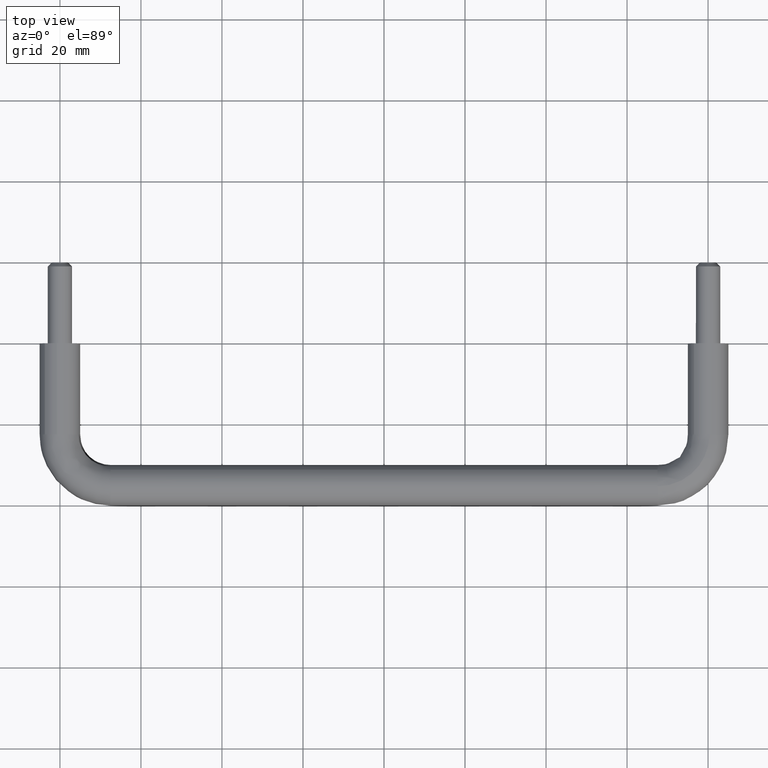
[diagram: clean part render]
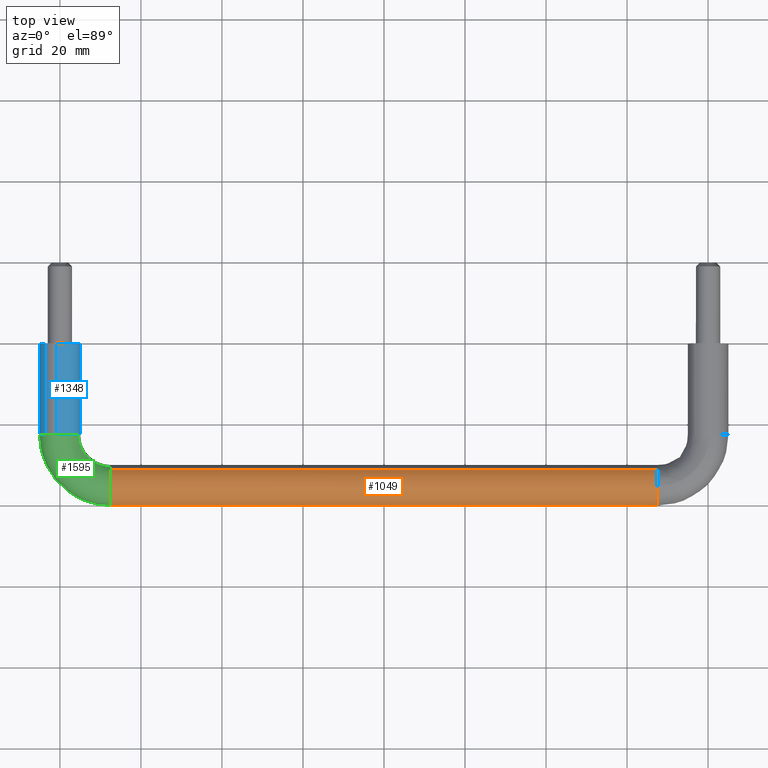
[diagram: same view with three faces highlighted in distinct colors, each labeled with its STEP entity id]
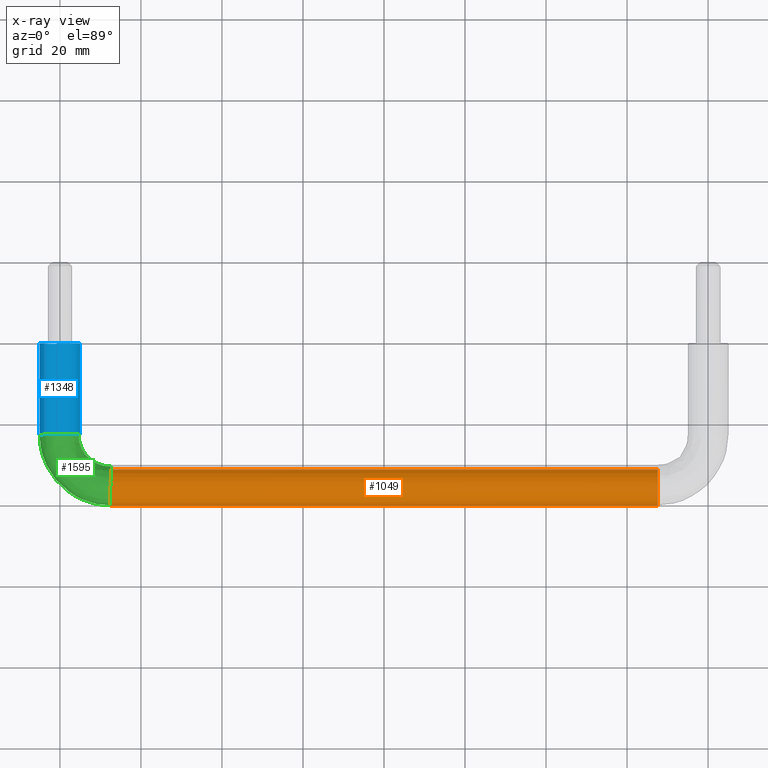
[diagram: x-ray of the same camera — body ghosted, the three highlighted faces saturated]
A machine part, top view with three faces highlighted in distinct colors.
The next image is the same camera in x-ray (body ghosted, the three faces saturated) — at least one of them is partly hidden behind the body in this view.
Their STEP definitions:

[orange] entity #1049 — the highlighted face is a freeform B-spline surface patch.
#928=CARTESIAN_POINT('',(9.124999999932097,-31.134301527502714,3.172047033751499));
#929=CARTESIAN_POINT('',(9.124999999932095,-31.158329223448398,3.200458507274524));
#930=CARTESIAN_POINT('',(9.124999999932093,-31.274626083842424,3.337973364186448));
#931=CARTESIAN_POINT('',(9.124999999932093,-31.373128144938558,3.441772878468769));
#932=CARTESIAN_POINT('',(9.124999999932093,-34.814901023407330,7.068644733530205));
#933=CARTESIAN_POINT('',(9.124999999932093,-38.441772878468768,3.626871855061437));
#934=CARTESIAN_POINT('',(9.124999999932093,-42.068644733530206,0.185098976592668));
#935=CARTESIAN_POINT('',(9.124999999932097,-38.602122203160221,-3.467853569749915));
#936=CARTESIAN_POINT('',(9.124999999932090,-38.577519551696867,-3.493779354891164));
#937=CARTESIAN_POINT('',(150.959375002785690,-31.134301527502689,3.172047033751499));
#938=CARTESIAN_POINT('',(150.959375002785720,-31.158329223448384,3.200458507274524));
#939=CARTESIAN_POINT('',(150.959375002785720,-31.274626083842413,3.337973364186448));
#940=CARTESIAN_POINT('',(150.959375002785690,-31.373128144938551,3.441772878468769));
#941=CARTESIAN_POINT('',(150.959375002785750,-34.814901023407316,7.068644733530205));
#942=CARTESIAN_POINT('',(150.959375002785690,-38.441772878468747,3.626871855061437));
#943=CARTESIAN_POINT('',(150.959375002785750,-42.068644733530192,0.185098976592668));
#944=CARTESIAN_POINT('',(150.959375002785780,-38.602122203160214,-3.467853569749915));
#945=CARTESIAN_POINT('',(150.959375002785690,-38.577519551696859,-3.493779354891164));
#953=(BOUNDED_SURFACE()B_SPLINE_SURFACE(2,1,((#928,#937),(#929,#938),(#930,#939),(#931,#940),(#932,#941),(#933,#942),(#934,#943),(#935,#944),(#936,#945)),.UNSPECIFIED.,.F.,.F.,.U.)B_SPLINE_SURFACE_WITH_KNOTS((3,1,2,2,1,3),(2,2),(0.0,0.084508292774073,0.415879142672549,8.700150390134448,16.984421637596348,17.068920665394639),(0.0,141.834375002853700),.UNSPECIFIED.)GEOMETRIC_REPRESENTATION_ITEM()RATIONAL_B_SPLINE_SURFACE(((0.972008213201519,0.972008213201519),(0.974757006998323,0.974757006998323),(0.988284271247462,0.988284271247462),(1.0,1.0),(0.707106781186548,0.707106781186548),(1.0,1.0),(0.707106781186548,0.707106781186548),(1.002987491777992,1.002987491777992),(1.005974983555985,1.005974983555985)))REPRESENTATION_ITEM('')SURFACE());
#954=CARTESIAN_POINT('',(147.500000000000000,-31.182221785298410,3.228710191911005));
#955=VERTEX_POINT('',#954);
#956=CARTESIAN_POINT('',(147.500000002716090,-35.348666267987262,4.987828368495434));
#957=VERTEX_POINT('',#956);
#958=CARTESIAN_POINT('',(147.500000000000030,-31.182221785298420,3.228710191911005));
#959=CARTESIAN_POINT('',(147.500000000000030,-32.680208607630043,5.0));
#960=CARTESIAN_POINT('',(147.500000000000000,-35.0,5.0));
#961=CARTESIAN_POINT('',(147.500000000000060,-35.174545589520619,5.0));
#962=CARTESIAN_POINT('',(147.500000002716060,-35.348666267987262,4.987828368495434));
#970=(BOUNDED_CURVE()B_SPLINE_CURVE(2,(#958,#959,#960,#961,#962),.UNSPECIFIED.,.F.,.U.)B_SPLINE_CURVE_WITH_KNOTS((3,2,3),(0.612408089723808,0.750000000000000,0.762166314162062),.UNSPECIFIED.)CURVE()GEOMETRIC_REPRESENTATION_ITEM()RATIONAL_B_SPLINE_CURVE((0.855039471779534,0.838801050066057,1.0,0.985746276335912,0.972879874912435))REPRESENTATION_ITEM(''));
#971=EDGE_CURVE('',#955,#957,#970,.T.);
#972=ORIENTED_EDGE('',*,*,#971,.F.);
#973=CARTESIAN_POINT('',(12.500000000006970,-31.182216886848611,3.228704399729181));
#974=VERTEX_POINT('',#973);
#975=CARTESIAN_POINT('',(12.500000000006970,-31.182216886848611,3.228704399729181));
#976=CARTESIAN_POINT('',(147.500000000000000,-31.182221785298410,3.228710191911005));
#977=QUASI_UNIFORM_CURVE('',1,(#975,#976),.UNSPECIFIED.,.F.,.U.);
#978=EDGE_CURVE('',#974,#955,#977,.T.);
#979=ORIENTED_EDGE('',*,*,#978,.F.);
#980=CARTESIAN_POINT('',(12.500000000000000,-40.0,0.0));
#981=VERTEX_POINT('',#980);
#982=CARTESIAN_POINT('',(12.500000000006976,-31.182216886848611,3.228704399729182));
#983=CARTESIAN_POINT('',(12.500000000000004,-32.680203998306268,5.0));
#984=CARTESIAN_POINT('',(12.500000000000000,-35.0,5.0));
#985=CARTESIAN_POINT('',(12.500000000000000,-39.999999999999993,5.000000000000001));
#986=CARTESIAN_POINT('',(12.500000000000000,-40.0,0.0));
#994=(BOUNDED_CURVE()B_SPLINE_CURVE(2,(#982,#983,#984,#985,#986),.UNSPECIFIED.,.F.,.U.)B_SPLINE_CURVE_WITH_KNOTS((3,2,3),(0.612407860404824,0.750000000000000,1.0),.UNSPECIFIED.)CURVE()GEOMETRIC_REPRESENTATION_ITEM()RATIONAL_B_SPLINE_CURVE((0.855039525907895,0.838800781402156,1.0,0.707106781186548,1.0))REPRESENTATION_ITEM(''));
#995=EDGE_CURVE('',#974,#981,#994,.T.);
#996=ORIENTED_EDGE('',*,*,#995,.T.);
#997=CARTESIAN_POINT('',(12.500000000000000,-38.626872194420599,-3.441772520858758));
#998=VERTEX_POINT('',#997);
#999=CARTESIAN_POINT('',(12.500000000000000,-40.0,0.0));
#1000=CARTESIAN_POINT('',(12.499999999999996,-40.0,-1.994797158397781));
#1001=CARTESIAN_POINT('',(12.500000000000005,-38.626872194420599,-3.441772520858758));
#1009=(BOUNDED_CURVE()B_SPLINE_CURVE(2,(#999,#1000,#1001),.UNSPECIFIED.,.F.,.U.)B_SPLINE_CURVE_WITH_KNOTS((3,3),(0.0,0.121049496898760),.UNSPECIFIED.)CURVE()GEOMETRIC_REPRESENTATION_ITEM()RATIONAL_B_SPLINE_CURVE((1.0,0.858181692870293,0.853699663573264))REPRESENTATION_ITEM(''));
#1010=EDGE_CURVE('',#981,#998,#1009,.T.);
#1011=ORIENTED_EDGE('',*,*,#1010,.T.);
#1012=CARTESIAN_POINT('',(147.500000000000000,-38.626872198659441,-3.441772516391942));
#1013=VERTEX_POINT('',#1012);
#1014=CARTESIAN_POINT('',(12.500000000000000,-38.626872194420599,-3.441772520858758));
#1015=CARTESIAN_POINT('',(147.500000000000000,-38.626872198659441,-3.441772516391942));
#1016=QUASI_UNIFORM_CURVE('',1,(#1014,#1015),.UNSPECIFIED.,.F.,.U.);
#1017=EDGE_CURVE('',#998,#1013,#1016,.T.);
#1018=ORIENTED_EDGE('',*,*,#1017,.T.);
#1019=CARTESIAN_POINT('',(147.500000000000000,-40.0,0.0));
#1020=VERTEX_POINT('',#1019);
#1021=CARTESIAN_POINT('',(147.500000000000000,-40.0,0.0));
#1022=CARTESIAN_POINT('',(147.500000000000000,-40.0,-1.994797151259686));
#1023=CARTESIAN_POINT('',(147.499999999999970,-38.626872198659449,-3.441772516391941));
#1031=(BOUNDED_CURVE()B_SPLINE_CURVE(2,(#1021,#1022,#1023),.UNSPECIFIED.,.F.,.U.)B_SPLINE_CURVE_WITH_KNOTS((3,3),(0.0,0.121049496527031),.UNSPECIFIED.)CURVE()GEOMETRIC_REPRESENTATION_ITEM()RATIONAL_B_SPLINE_CURVE((1.0,0.858181693305800,0.853699663600792))REPRESENTATION_ITEM(''));
#1032=EDGE_CURVE('',#1020,#1013,#1031,.T.);
#1033=ORIENTED_EDGE('',*,*,#1032,.F.);
#1034=CARTESIAN_POINT('',(147.500000002716090,-35.348666267987262,4.987828368495434));
#1035=CARTESIAN_POINT('',(147.500000000000000,-40.0,4.662684217384968));
#1036=CARTESIAN_POINT('',(147.500000000000000,-40.0,0.0));
#1044=(BOUNDED_CURVE()B_SPLINE_CURVE(2,(#1034,#1035,#1036),.UNSPECIFIED.,.F.,.U.)B_SPLINE_CURVE_WITH_KNOTS((3,3),(0.762166314162063,1.0),.UNSPECIFIED.)CURVE()GEOMETRIC_REPRESENTATION_ITEM()RATIONAL_B_SPLINE_CURVE((0.972879874912433,0.721360504850637,1.0))REPRESENTATION_ITEM(''));
#1045=EDGE_CURVE('',#957,#1020,#1044,.T.);
#1046=ORIENTED_EDGE('',*,*,#1045,.F.);
#1047=EDGE_LOOP('',(#972,#979,#996,#1011,#1018,#1033,#1046));
#1048=FACE_OUTER_BOUND('',#1047,.T.);
#1049=ADVANCED_FACE('',(#1048),#953,.T.);

[blue] entity #1348 — the highlighted face is a freeform B-spline surface patch.
#1178=CARTESIAN_POINT('',(-3.704541040031022,0.562500000036337,3.358031519019121));
#1179=CARTESIAN_POINT('',(-5.295144837890152,0.562500000036337,1.603296039550026));
#1180=CARTESIAN_POINT('',(-4.945079316809583,0.562500000036337,-0.739047055648054));
#1181=CARTESIAN_POINT('',(-4.206032261161528,0.562500000036337,-5.684126372457635));
#1182=CARTESIAN_POINT('',(0.739047055648054,0.562500000036337,-4.945079316809583));
#1183=CARTESIAN_POINT('',(5.684126372457635,0.562500000036338,-4.206032261161528));
#1184=CARTESIAN_POINT('',(4.945079316809583,0.562500000036338,0.739047055648054));
#1185=CARTESIAN_POINT('',(4.206032261161528,0.562500000036338,5.684126372457635));
#1186=CARTESIAN_POINT('',(-0.739047055648054,0.562500000036337,4.945079316809583));
#1187=CARTESIAN_POINT('',(-3.704541040031019,-23.076562501490685,3.358031519019121));
#1188=CARTESIAN_POINT('',(-5.295144837890149,-23.076562501490685,1.603296039550026));
#1189=CARTESIAN_POINT('',(-4.945079316809580,-23.076562501490692,-0.739047055648054));
#1190=CARTESIAN_POINT('',(-4.206032261161528,-23.076562501490699,-5.684126372457635));
#1191=CARTESIAN_POINT('',(0.739047055648057,-23.076562501490692,-4.945079316809583));
#1192=CARTESIAN_POINT('',(5.684126372457641,-23.076562501490699,-4.206032261161528));
#1193=CARTESIAN_POINT('',(4.945079316809586,-23.076562501490692,0.739047055648054));
#1194=CARTESIAN_POINT('',(4.206032261161532,-23.076562501490699,5.684126372457635));
#1195=CARTESIAN_POINT('',(-0.739047055648051,-23.076562501490692,4.945079316809583));
#1203=(BOUNDED_SURFACE()B_SPLINE_SURFACE(2,1,((#1178,#1187),(#1179,#1188),(#1180,#1189),(#1181,#1190),(#1182,#1191),(#1183,#1192),(#1184,#1193),(#1185,#1194),(#1186,#1195)),.UNSPECIFIED.,.F.,.F.,.U.)B_SPLINE_SURFACE_WITH_KNOTS((3,2,2,2,3),(2,2),(0.0,4.639191898578663,12.923463146040559,21.207734393502459,29.492005640964361),(0.0,23.639062501527029),.UNSPECIFIED.)GEOMETRIC_REPRESENTATION_ITEM()RATIONAL_B_SPLINE_SURFACE(((0.855662221768731,0.855662221768731),(0.835979797464467,0.835979797464467),(1.0,1.0),(0.707106781186548,0.707106781186548),(1.0,1.0),(0.707106781186548,0.707106781186548),(1.0,1.0),(0.707106781186548,0.707106781186548),(1.0,1.0)))REPRESENTATION_ITEM('')SURFACE());
#1204=CARTESIAN_POINT('',(-3.704543296746590,-22.499999999999879,3.358029029433574));
#1205=VERTEX_POINT('',#1204);
#1206=CARTESIAN_POINT('',(-4.999999999999997,-22.500000000000000,0.0));
#1207=VERTEX_POINT('',#1206);
#1208=CARTESIAN_POINT('',(-3.704543296746589,-22.499999999999883,3.358029029433574));
#1209=CARTESIAN_POINT('',(-4.999999999999996,-22.500000000000000,1.928894437626099));
#1210=CARTESIAN_POINT('',(-4.999999999999997,-22.500000000000000,0.0));
#1218=(BOUNDED_CURVE()B_SPLINE_CURVE(2,(#1208,#1209,#1210),.UNSPECIFIED.,.F.,.U.)B_SPLINE_CURVE_WITH_KNOTS((3,3),(0.882398655225513,1.0),.UNSPECIFIED.)CURVE()GEOMETRIC_REPRESENTATION_ITEM()RATIONAL_B_SPLINE_CURVE((0.854066446716059,0.862221454368840,1.0))REPRESENTATION_ITEM(''));
#1219=EDGE_CURVE('',#1205,#1207,#1218,.T.);
#1220=ORIENTED_EDGE('',*,*,#1219,.F.);
#1221=CARTESIAN_POINT('',(-3.704543268906057,-4.216880E-016,3.358029060147010));
#1222=VERTEX_POINT('',#1221);
#1223=CARTESIAN_POINT('',(-3.704543268906057,-4.216880E-016,3.358029060147010));
#1224=CARTESIAN_POINT('',(-3.704543296746590,-22.499999999999879,3.358029029433574));
#1225=QUASI_UNIFORM_CURVE('',1,(#1223,#1224),.UNSPECIFIED.,.F.,.U.);
#1226=EDGE_CURVE('',#1222,#1205,#1225,.T.);
#1227=ORIENTED_EDGE('',*,*,#1226,.F.);
#1228=CARTESIAN_POINT('',(-5.0,0.0,0.0));
#1229=VERTEX_POINT('',#1228);
#1230=CARTESIAN_POINT('',(-3.704543268906057,-4.216880E-016,3.358029060147009));
#1231=CARTESIAN_POINT('',(-5.0,0.0,1.928894461437639));
#1232=CARTESIAN_POINT('',(-5.0,0.0,0.0));
#1240=(BOUNDED_CURVE()B_SPLINE_CURVE(2,(#1230,#1231,#1232),.UNSPECIFIED.,.F.,.U.)B_SPLINE_CURVE_WITH_KNOTS((3,3),(0.882398653973784,1.0),.UNSPECIFIED.)CURVE()GEOMETRIC_REPRESENTATION_ITEM()RATIONAL_B_SPLINE_CURVE((0.854066446542458,0.862221452902348,1.0))REPRESENTATION_ITEM(''));
#1241=EDGE_CURVE('',#1222,#1229,#1240,.T.);
#1242=ORIENTED_EDGE('',*,*,#1241,.T.);
#1243=CARTESIAN_POINT('',(5.0,0.0,0.0));
#1244=VERTEX_POINT('',#1243);
#1245=CARTESIAN_POINT('',(-5.0,0.0,0.0));
#1246=CARTESIAN_POINT('',(-5.000000000000001,0.0,-5.000000000000001));
#1247=CARTESIAN_POINT('',(0.0,0.0,-5.0));
#1248=CARTESIAN_POINT('',(5.000000000000001,0.0,-5.000000000000001));
#1249=CARTESIAN_POINT('',(5.0,0.0,0.0));
#1257=(BOUNDED_CURVE()B_SPLINE_CURVE(2,(#1245,#1246,#1247,#1248,#1249),.UNSPECIFIED.,.F.,.U.)B_SPLINE_CURVE_WITH_KNOTS((3,2,3),(0.0,0.250000000000000,0.500000000000000),.UNSPECIFIED.)CURVE()GEOMETRIC_REPRESENTATION_ITEM()RATIONAL_B_SPLINE_CURVE((1.0,0.707106781186548,1.0,0.707106781186548,1.0))REPRESENTATION_ITEM(''));
#1258=EDGE_CURVE('',#1229,#1244,#1257,.T.);
#1259=ORIENTED_EDGE('',*,*,#1258,.T.);
#1260=CARTESIAN_POINT('',(-0.739047055678354,-2.220446E-016,4.945079316805055));
#1261=VERTEX_POINT('',#1260);
#1262=CARTESIAN_POINT('',(5.0,0.0,0.0));
#1263=CARTESIAN_POINT('',(5.000000000000001,0.0,5.000000000000001));
#1264=CARTESIAN_POINT('',(0.0,0.0,5.0));
#1265=CARTESIAN_POINT('',(-0.371564183736669,0.0,5.000000000000001));
#1266=CARTESIAN_POINT('',(-0.739047055678354,-2.220446E-016,4.945079316805055));
#1274=(BOUNDED_CURVE()B_SPLINE_CURVE(2,(#1262,#1263,#1264,#1265,#1266),.UNSPECIFIED.,.F.,.U.)B_SPLINE_CURVE_WITH_KNOTS((3,2,3),(0.500000000000000,0.750000000000000,0.775488969613789),.UNSPECIFIED.)CURVE()GEOMETRIC_REPRESENTATION_ITEM()RATIONAL_B_SPLINE_CURVE((1.0,0.707106781186548,1.0,0.970137814582317,0.946364879858335))REPRESENTATION_ITEM(''));
#1275=EDGE_CURVE('',#1244,#1261,#1274,.T.);
#1276=ORIENTED_EDGE('',*,*,#1275,.T.);
#1277=CARTESIAN_POINT('',(-0.739047056177648,-22.500000000000000,4.945079316730435));
#1278=VERTEX_POINT('',#1277);
#1279=CARTESIAN_POINT('',(-0.739047055678354,-2.220446E-016,4.945079316805055));
#1280=CARTESIAN_POINT('',(-0.739047056177648,-22.500000000000000,4.945079316730435));
#1281=QUASI_UNIFORM_CURVE('',1,(#1279,#1280),.UNSPECIFIED.,.F.,.U.);
#1282=EDGE_CURVE('',#1261,#1278,#1281,.T.);
#1283=ORIENTED_EDGE('',*,*,#1282,.T.);
#1284=CARTESIAN_POINT('',(4.550529853313581,-22.500000000180162,2.071877905211092));
#1285=VERTEX_POINT('',#1284);
#1286=CARTESIAN_POINT('',(4.550529853313581,-22.500000000180169,2.071877905211091));
#1287=CARTESIAN_POINT('',(3.217341923912157,-22.499999999999989,5.000000000000001));
#1288=CARTESIAN_POINT('',(2.755364E-015,-22.500000000000000,5.0));
#1289=CARTESIAN_POINT('',(-0.371564184244270,-22.500000000000000,5.0));
#1290=CARTESIAN_POINT('',(-0.739047056177648,-22.500000000000004,4.945079316730435));
#1298=(BOUNDED_CURVE()B_SPLINE_CURVE(2,(#1286,#1287,#1288,#1289,#1290),.UNSPECIFIED.,.F.,.U.)B_SPLINE_CURVE_WITH_KNOTS((3,2,3),(0.570375489974829,0.750000000000000,0.775488969647570),.UNSPECIFIED.)CURVE()GEOMETRIC_REPRESENTATION_ITEM()RATIONAL_B_SPLINE_CURVE((0.881519651435291,0.789556796323754,1.0,0.970137814542740,0.946364879795321))REPRESENTATION_ITEM(''));
#1299=EDGE_CURVE('',#1285,#1278,#1298,.T.);
#1300=ORIENTED_EDGE('',*,*,#1299,.F.);
#1301=CARTESIAN_POINT('',(5.000000000000003,-22.500000000000000,0.0));
#1302=VERTEX_POINT('',#1301);
#1303=CARTESIAN_POINT('',(5.000000000000003,-22.500000000000000,0.0));
#1304=CARTESIAN_POINT('',(5.000000000000003,-22.500000000000000,1.084692649152395));
#1305=CARTESIAN_POINT('',(4.550529853313581,-22.500000000180162,2.071877905211092));
#1313=(BOUNDED_CURVE()B_SPLINE_CURVE(2,(#1303,#1304,#1305),.UNSPECIFIED.,.F.,.U.)B_SPLINE_CURVE_WITH_KNOTS((3,3),(0.500000000000000,0.570375489974830),.UNSPECIFIED.)CURVE()GEOMETRIC_REPRESENTATION_ITEM()RATIONAL_B_SPLINE_CURVE((1.0,0.917549984862793,0.881519651435290))REPRESENTATION_ITEM(''));
#1314=EDGE_CURVE('',#1302,#1285,#1313,.T.);
#1315=ORIENTED_EDGE('',*,*,#1314,.F.);
#1316=CARTESIAN_POINT('',(1.808231368748996,-22.500000001453440,-4.661576913134882));
#1317=VERTEX_POINT('',#1316);
#1318=CARTESIAN_POINT('',(1.808231368748997,-22.500000001453444,-4.661576913134882));
#1319=CARTESIAN_POINT('',(5.000000000000003,-22.499999999999996,-3.423485967838657));
#1320=CARTESIAN_POINT('',(5.000000000000003,-22.500000000000000,0.0));
#1328=(BOUNDED_CURVE()B_SPLINE_CURVE(2,(#1318,#1319,#1320),.UNSPECIFIED.,.F.,.U.)B_SPLINE_CURVE_WITH_KNOTS((3,3),(0.311409344403013,0.500000000000000),.UNSPECIFIED.)CURVE()GEOMETRIC_REPRESENTATION_ITEM()RATIONAL_B_SPLINE_CURVE((0.891453974423832,0.779052303376237,1.0))REPRESENTATION_ITEM(''));
#1329=EDGE_CURVE('',#1317,#1302,#1328,.T.);
#1330=ORIENTED_EDGE('',*,*,#1329,.F.);
#1331=CARTESIAN_POINT('',(-4.999999999999997,-22.500000000000000,0.0));
#1332=CARTESIAN_POINT('',(-4.999999999999997,-22.500000000000000,-5.000000000000001));
#1333=CARTESIAN_POINT('',(2.755364E-015,-22.500000000000000,-5.0));
#1334=CARTESIAN_POINT('',(0.935784803453444,-22.500000000000004,-5.0));
#1335=CARTESIAN_POINT('',(1.808231368748997,-22.500000001453444,-4.661576913134882));
#1343=(BOUNDED_CURVE()B_SPLINE_CURVE(2,(#1331,#1332,#1333,#1334,#1335),.UNSPECIFIED.,.F.,.U.)B_SPLINE_CURVE_WITH_KNOTS((3,2,3),(0.0,0.250000000000000,0.311409344403013),.UNSPECIFIED.)CURVE()GEOMETRIC_REPRESENTATION_ITEM()RATIONAL_B_SPLINE_CURVE((1.0,0.707106781186548,1.0,0.928054477810311,0.891453974423832))REPRESENTATION_ITEM(''));
#1344=EDGE_CURVE('',#1207,#1317,#1343,.T.);
#1345=ORIENTED_EDGE('',*,*,#1344,.F.);
#1346=EDGE_LOOP('',(#1220,#1227,#1242,#1259,#1276,#1283,#1300,#1315,#1330,#1345));
#1347=FACE_OUTER_BOUND('',#1346,.T.);
#1348=ADVANCED_FACE('',(#1347),#1203,.T.);

[green] entity #1595 — the highlighted face is a freeform B-spline surface patch.
#973=CARTESIAN_POINT('',(12.500000000006970,-31.182216886848611,3.228704399729181));
#974=VERTEX_POINT('',#973);
#980=CARTESIAN_POINT('',(12.500000000000000,-40.0,0.0));
#981=VERTEX_POINT('',#980);
#982=CARTESIAN_POINT('',(12.500000000006976,-31.182216886848611,3.228704399729182));
#983=CARTESIAN_POINT('',(12.500000000000004,-32.680203998306268,5.0));
#984=CARTESIAN_POINT('',(12.500000000000000,-35.0,5.0));
#985=CARTESIAN_POINT('',(12.500000000000000,-39.999999999999993,5.000000000000001));
#986=CARTESIAN_POINT('',(12.500000000000000,-40.0,0.0));
#994=(BOUNDED_CURVE()B_SPLINE_CURVE(2,(#982,#983,#984,#985,#986),.UNSPECIFIED.,.F.,.U.)B_SPLINE_CURVE_WITH_KNOTS((3,2,3),(0.612407860404824,0.750000000000000,1.0),.UNSPECIFIED.)CURVE()GEOMETRIC_REPRESENTATION_ITEM()RATIONAL_B_SPLINE_CURVE((0.855039525907895,0.838800781402156,1.0,0.707106781186548,1.0))REPRESENTATION_ITEM(''));
#995=EDGE_CURVE('',#974,#981,#994,.T.);
#997=CARTESIAN_POINT('',(12.500000000000000,-38.626872194420599,-3.441772520858758));
#998=VERTEX_POINT('',#997);
#999=CARTESIAN_POINT('',(12.500000000000000,-40.0,0.0));
#1000=CARTESIAN_POINT('',(12.499999999999996,-40.0,-1.994797158397781));
#1001=CARTESIAN_POINT('',(12.500000000000005,-38.626872194420599,-3.441772520858758));
#1009=(BOUNDED_CURVE()B_SPLINE_CURVE(2,(#999,#1000,#1001),.UNSPECIFIED.,.F.,.U.)B_SPLINE_CURVE_WITH_KNOTS((3,3),(0.0,0.121049496898760),.UNSPECIFIED.)CURVE()GEOMETRIC_REPRESENTATION_ITEM()RATIONAL_B_SPLINE_CURVE((1.0,0.858181692870293,0.853699663573264))REPRESENTATION_ITEM(''));
#1010=EDGE_CURVE('',#981,#998,#1009,.T.);
#1114=CARTESIAN_POINT('',(12.500000000970360,-33.191768631769513,-4.661576913336010));
#1115=VERTEX_POINT('',#1114);
#1116=CARTESIAN_POINT('',(12.500000000000005,-38.626872194420599,-3.441772520858758));
#1117=CARTESIAN_POINT('',(12.499999999999998,-37.148170113835420,-5.0));
#1118=CARTESIAN_POINT('',(12.500000000000000,-35.0,-5.0));
#1119=CARTESIAN_POINT('',(12.500000000000005,-34.064215197122188,-5.0));
#1120=CARTESIAN_POINT('',(12.500000000970365,-33.191768631769520,-4.661576913336010));
#1128=(BOUNDED_CURVE()B_SPLINE_CURVE(2,(#1116,#1117,#1118,#1119,#1120),.UNSPECIFIED.,.F.,.U.)B_SPLINE_CURVE_WITH_KNOTS((3,2,3),(0.121049496898760,0.250000000000000,0.311409344367956),.UNSPECIFIED.)CURVE()GEOMETRIC_REPRESENTATION_ITEM()RATIONAL_B_SPLINE_CURVE((0.853699663573264,0.848925088316254,1.0,0.928054477851383,0.891453974465620))REPRESENTATION_ITEM(''));
#1129=EDGE_CURVE('',#998,#1115,#1128,.T.);
#1146=CARTESIAN_POINT('',(12.500000000011530,-30.449470146599229,2.071877905019577));
#1147=VERTEX_POINT('',#1146);
#1161=CARTESIAN_POINT('',(12.500000000011521,-30.449470146599221,2.071877905019577));
#1162=CARTESIAN_POINT('',(12.500000000009047,-30.735884297693200,2.700938209100045));
#1163=CARTESIAN_POINT('',(12.500000000006976,-31.182216886848611,3.228704399729182));
#1171=(BOUNDED_CURVE()B_SPLINE_CURVE(2,(#1161,#1162,#1163),.UNSPECIFIED.,.F.,.U.)B_SPLINE_CURVE_WITH_KNOTS((3,3),(0.570375489961713,0.612407860404824),.UNSPECIFIED.)CURVE()GEOMETRIC_REPRESENTATION_ITEM()RATIONAL_B_SPLINE_CURVE((0.881519651448722,0.860000222984083,0.855039525907895))REPRESENTATION_ITEM(''));
#1172=EDGE_CURVE('',#1147,#974,#1171,.T.);
#1204=CARTESIAN_POINT('',(-3.704543296746590,-22.499999999999879,3.358029029433574));
#1205=VERTEX_POINT('',#1204);
#1206=CARTESIAN_POINT('',(-4.999999999999997,-22.500000000000000,0.0));
#1207=VERTEX_POINT('',#1206);
#1208=CARTESIAN_POINT('',(-3.704543296746589,-22.499999999999883,3.358029029433574));
#1209=CARTESIAN_POINT('',(-4.999999999999996,-22.500000000000000,1.928894437626099));
#1210=CARTESIAN_POINT('',(-4.999999999999997,-22.500000000000000,0.0));
#1218=(BOUNDED_CURVE()B_SPLINE_CURVE(2,(#1208,#1209,#1210),.UNSPECIFIED.,.F.,.U.)B_SPLINE_CURVE_WITH_KNOTS((3,3),(0.882398655225513,1.0),.UNSPECIFIED.)CURVE()GEOMETRIC_REPRESENTATION_ITEM()RATIONAL_B_SPLINE_CURVE((0.854066446716059,0.862221454368840,1.0))REPRESENTATION_ITEM(''));
#1219=EDGE_CURVE('',#1205,#1207,#1218,.T.);
#1277=CARTESIAN_POINT('',(-0.739047056177648,-22.500000000000000,4.945079316730435));
#1278=VERTEX_POINT('',#1277);
#1284=CARTESIAN_POINT('',(4.550529853313581,-22.500000000180162,2.071877905211092));
#1285=VERTEX_POINT('',#1284);
#1286=CARTESIAN_POINT('',(4.550529853313581,-22.500000000180169,2.071877905211091));
#1287=CARTESIAN_POINT('',(3.217341923912157,-22.499999999999989,5.000000000000001));
#1288=CARTESIAN_POINT('',(2.755364E-015,-22.500000000000000,5.0));
#1289=CARTESIAN_POINT('',(-0.371564184244270,-22.500000000000000,5.0));
#1290=CARTESIAN_POINT('',(-0.739047056177648,-22.500000000000004,4.945079316730435));
#1298=(BOUNDED_CURVE()B_SPLINE_CURVE(2,(#1286,#1287,#1288,#1289,#1290),.UNSPECIFIED.,.F.,.U.)B_SPLINE_CURVE_WITH_KNOTS((3,2,3),(0.570375489974829,0.750000000000000,0.775488969647570),.UNSPECIFIED.)CURVE()GEOMETRIC_REPRESENTATION_ITEM()RATIONAL_B_SPLINE_CURVE((0.881519651435291,0.789556796323754,1.0,0.970137814542740,0.946364879795321))REPRESENTATION_ITEM(''));
#1299=EDGE_CURVE('',#1285,#1278,#1298,.T.);
#1316=CARTESIAN_POINT('',(1.808231368748996,-22.500000001453440,-4.661576913134882));
#1317=VERTEX_POINT('',#1316);
#1331=CARTESIAN_POINT('',(-4.999999999999997,-22.500000000000000,0.0));
#1332=CARTESIAN_POINT('',(-4.999999999999997,-22.500000000000000,-5.000000000000001));
#1333=CARTESIAN_POINT('',(2.755364E-015,-22.500000000000000,-5.0));
#1334=CARTESIAN_POINT('',(0.935784803453444,-22.500000000000004,-5.0));
#1335=CARTESIAN_POINT('',(1.808231368748997,-22.500000001453444,-4.661576913134882));
#1343=(BOUNDED_CURVE()B_SPLINE_CURVE(2,(#1331,#1332,#1333,#1334,#1335),.UNSPECIFIED.,.F.,.U.)B_SPLINE_CURVE_WITH_KNOTS((3,2,3),(0.0,0.250000000000000,0.311409344403013),.UNSPECIFIED.)CURVE()GEOMETRIC_REPRESENTATION_ITEM()RATIONAL_B_SPLINE_CURVE((1.0,0.707106781186548,1.0,0.928054477810311,0.891453974423832))REPRESENTATION_ITEM(''));
#1344=EDGE_CURVE('',#1207,#1317,#1343,.T.);
#1367=CARTESIAN_POINT('',(-0.739047056177648,-22.499999999999996,4.945079316730435));
#1368=CARTESIAN_POINT('',(-2.505206609128753,-22.500000000000000,4.681125002612818));
#1369=CARTESIAN_POINT('',(-3.704543296746589,-22.499999999999883,3.358029029433574));
#1377=(BOUNDED_CURVE()B_SPLINE_CURVE(2,(#1367,#1368,#1369),.UNSPECIFIED.,.F.,.U.)B_SPLINE_CURVE_WITH_KNOTS((3,3),(0.775488969647571,0.882398655225513),.UNSPECIFIED.)CURVE()GEOMETRIC_REPRESENTATION_ITEM()RATIONAL_B_SPLINE_CURVE((0.946364879795319,0.846652846933537,0.854066446716059))REPRESENTATION_ITEM(''));
#1378=EDGE_CURVE('',#1278,#1205,#1377,.T.);
#1502=CARTESIAN_POINT('',(1.939530439591085,-21.710645529026635,-4.622073225194603));
#1503=CARTESIAN_POINT('',(1.248567444304619,-30.954773417595902,-4.622073225194603));
#1504=CARTESIAN_POINT('',(10.319929573897124,-32.863102371124235,-4.622073225194603));
#1505=CARTESIAN_POINT('',(11.803867543415816,-33.175276193756055,-4.622073225194603));
#1506=CARTESIAN_POINT('',(13.315779786482674,-33.058461116902180,-4.622073225194603));
#1507=CARTESIAN_POINT('',(1.888964564627269,-21.706865924412181,-4.641742506573117));
#1508=CARTESIAN_POINT('',(1.194693084976124,-30.995256751507902,-4.641742506573118));
#1509=CARTESIAN_POINT('',(10.309490912249732,-32.912723208127538,-4.641742506573118));
#1510=CARTESIAN_POINT('',(11.800534306521705,-33.226391788392249,-4.641742506573118));
#1511=CARTESIAN_POINT('',(13.319685921379923,-33.109017374992170,-4.641742506573118));
#1512=CARTESIAN_POINT('',(-2.551955849618482,-21.374924208736608,-6.369186425419473));
#1513=CARTESIAN_POINT('',(-3.536793165732038,-34.550683492075137,-6.369186425419474));
#1514=CARTESIAN_POINT('',(9.392721141323102,-37.270646178463913,-6.369186425419473));
#1515=CARTESIAN_POINT('',(11.507794592650107,-37.715591033309849,-6.369186425419474));
#1516=CARTESIAN_POINT('',(13.662740090192811,-37.549093192535196,-6.369186425419473));
#1517=CARTESIAN_POINT('',(-4.503097964847975,-21.229083842136362,-2.071877904966421));
#1518=CARTESIAN_POINT('',(-5.615596933926549,-36.112779229904746,-2.071877904966421));
#1519=CARTESIAN_POINT('',(8.989933443465191,-39.185322923193070,-2.071877904966421));
#1520=CARTESIAN_POINT('',(11.379177835028676,-39.687944710785679,-2.071877904966421));
#1521=CARTESIAN_POINT('',(13.813462772461270,-39.499864229690026,-2.071877904966421));
#1522=CARTESIAN_POINT('',(-6.569212231805586,-21.074649749519974,2.478651948458553));
#1523=CARTESIAN_POINT('',(-7.816895388891596,-37.766922341824518,2.478651948458555));
#1524=CARTESIAN_POINT('',(8.563411252896128,-41.212823077087073,2.478651948458555));
#1525=CARTESIAN_POINT('',(11.242982262283224,-41.776520443281647,2.478651948458554));
#1526=CARTESIAN_POINT('',(13.973066873955617,-41.565585552587741,2.478651948458554));
#1527=CARTESIAN_POINT('',(-2.031341235719911,-21.413838148195847,4.550529853424976));
#1528=CARTESIAN_POINT('',(-2.982115158065648,-34.133876400948843,4.550529853424976));
#1529=CARTESIAN_POINT('',(9.500195199807418,-36.759761457962398,4.550529853424976));
#1530=CARTESIAN_POINT('',(11.542112832765635,-37.189316632149804,4.550529853424976));
#1531=CARTESIAN_POINT('',(13.622523424055329,-37.028577591756715,4.550529853424976));
#1532=CARTESIAN_POINT('',(2.506529760365772,-21.753026546871745,6.622407758391395));
#1533=CARTESIAN_POINT('',(1.852665072760305,-30.500830460073182,6.622407758391395));
#1534=CARTESIAN_POINT('',(10.436979146718713,-32.306699838837723,6.622407758391395));
#1535=CARTESIAN_POINT('',(11.841243403248049,-32.602112821017961,6.622407758391396));
#1536=CARTESIAN_POINT('',(13.271979974155053,-32.491569630925703,6.622407758391396));
#1537=CARTESIAN_POINT('',(4.594384884626843,-21.909085684929273,2.023994580321393));
#1538=CARTESIAN_POINT('',(4.077126871765464,-28.829281491211763,2.023994580321393));
#1539=CARTESIAN_POINT('',(10.867989452117737,-30.257865147820837,2.023994580321394));
#1540=CARTESIAN_POINT('',(11.978872105109241,-30.491559878600068,2.023994580321394));
#1541=CARTESIAN_POINT('',(13.110696425375954,-30.404111585510741,2.023994580321394));
#1542=CARTESIAN_POINT('',(4.615937045143994,-21.910696626011582,1.976526852419047));
#1543=CARTESIAN_POINT('',(4.100089172740919,-28.812026706015917,1.976526852419048));
#1544=CARTESIAN_POINT('',(10.872438612971171,-30.236715780884033,1.976526852419048));
#1545=CARTESIAN_POINT('',(11.980292795577565,-30.469773416854522,1.976526852419047));
#1546=CARTESIAN_POINT('',(13.109031554623336,-30.382563523892468,1.976526852419047));
#1554=(BOUNDED_SURFACE()B_SPLINE_SURFACE(2,2,((#1502,#1507,#1512,#1517,#1522,#1527,#1532,#1537,#1542),(#1503,#1508,#1513,#1518,#1523,#1528,#1533,#1538,#1543),(#1504,#1509,#1514,#1519,#1524,#1529,#1534,#1539,#1544),(#1505,#1510,#1515,#1520,#1525,#1530,#1535,#1540,#1545),(#1506,#1511,#1516,#1521,#1526,#1531,#1536,#1541,#1546)),.UNSPECIFIED.,.F.,.F.,.U.)B_SPLINE_SURFACE_WITH_KNOTS((3,2,3),(3,1,2,2,1,3),(0.0,25.829988256707381,31.236719969226009),(0.0,0.126145870571941,8.079046268135382,16.363317515597299,24.647588763059218,24.771408161196099),.UNSPECIFIED.)GEOMETRIC_REPRESENTATION_ITEM()RATIONAL_B_SPLINE_SURFACE(((0.950217820183334,0.946262433313074,0.692938615511372,0.963991257828157,0.681644755414839,0.963991257828157,0.681644755414839,0.968211299996088,0.972431342164020),(0.728218373442587,0.725187083845807,0.531047324902716,0.738773922018271,0.522392050022901,0.738773922018271,0.522392050022901,0.742008035479538,0.745242148940804),(0.985712072041136,0.981608936418131,0.718822509939086,1.0,0.707106781186548,1.0,0.707106781186548,1.004377676803251,1.008755353606502),(0.931813505299629,0.927934728427520,0.679517418598343,0.945320171812547,0.668442303881085,0.945320171812547,0.668442303881085,0.949458478000337,0.953596784188126),(0.898923853634669,0.895181983578660,0.655532907673289,0.911953783596509,0.644848704509821,0.911953783596509,0.644848704509821,0.915946022520597,0.919938261444684)))REPRESENTATION_ITEM('')SURFACE());
#1555=ORIENTED_EDGE('',*,*,#1129,.F.);
#1556=ORIENTED_EDGE('',*,*,#1010,.F.);
#1557=ORIENTED_EDGE('',*,*,#995,.F.);
#1558=ORIENTED_EDGE('',*,*,#1172,.F.);
#1559=CARTESIAN_POINT('',(4.550529853313580,-22.500000000180165,2.071877905211092));
#1560=CARTESIAN_POINT('',(4.550529853717391,-28.951149267289725,2.071877904966421));
#1561=CARTESIAN_POINT('',(10.863501337287770,-30.279199684943730,2.071877904966421));
#1562=CARTESIAN_POINT('',(11.672892723713217,-30.449470146577422,2.071877904966421));
#1563=CARTESIAN_POINT('',(12.500000000011529,-30.449470146599225,2.071877905019577));
#1571=(BOUNDED_CURVE()B_SPLINE_CURVE(2,(#1559,#1560,#1561,#1562,#1563),.UNSPECIFIED.,.F.,.U.)B_SPLINE_CURVE_WITH_KNOTS((3,2,3),(-3.759886875664528,-2.0,-1.712481691733748),.UNSPECIFIED.)CURVE()GEOMETRIC_REPRESENTATION_ITEM()RATIONAL_B_SPLINE_CURVE((0.940720929703471,0.753120240884011,1.0,0.959666469664758,0.930929567737911))REPRESENTATION_ITEM(''));
#1572=EDGE_CURVE('',#1285,#1147,#1571,.T.);
#1573=ORIENTED_EDGE('',*,*,#1572,.F.);
#1574=ORIENTED_EDGE('',*,*,#1299,.T.);
#1575=ORIENTED_EDGE('',*,*,#1378,.T.);
#1576=ORIENTED_EDGE('',*,*,#1219,.T.);
#1577=ORIENTED_EDGE('',*,*,#1344,.T.);
#1578=CARTESIAN_POINT('',(1.808231368748996,-22.500000001453440,-4.661576913134882));
#1579=CARTESIAN_POINT('',(1.808231369436670,-31.176577698113942,-4.661576913783186));
#1580=CARTESIAN_POINT('',(10.298964616862618,-32.962760617643838,-4.661576913783187));
#1581=CARTESIAN_POINT('',(11.387568672867300,-33.191768633124248,-4.661576913783187));
#1582=CARTESIAN_POINT('',(12.500000000970365,-33.191768631769506,-4.661576913336010));
#1590=(BOUNDED_CURVE()B_SPLINE_CURVE(2,(#1578,#1579,#1580,#1581,#1582),.UNSPECIFIED.,.F.,.U.)B_SPLINE_CURVE_WITH_KNOTS((3,2,3),(-3.759886875357680,-2.0,-1.712481691494341),.UNSPECIFIED.)CURVE()GEOMETRIC_REPRESENTATION_ITEM()RATIONAL_B_SPLINE_CURVE((0.919560165650581,0.736179404202421,0.977505800795127,0.938079540893053,0.909989052548728))REPRESENTATION_ITEM(''));
#1591=EDGE_CURVE('',#1317,#1115,#1590,.T.);
#1592=ORIENTED_EDGE('',*,*,#1591,.T.);
#1593=EDGE_LOOP('',(#1555,#1556,#1557,#1558,#1573,#1574,#1575,#1576,#1577,#1592));
#1594=FACE_OUTER_BOUND('',#1593,.T.);
#1595=ADVANCED_FACE('',(#1594),#1554,.T.);